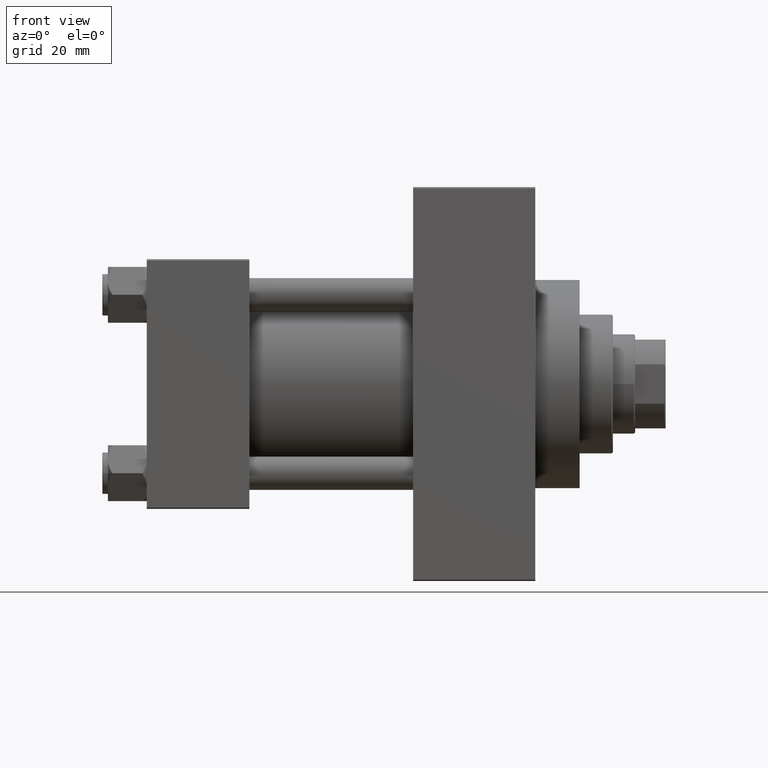
[diagram: clean part render]
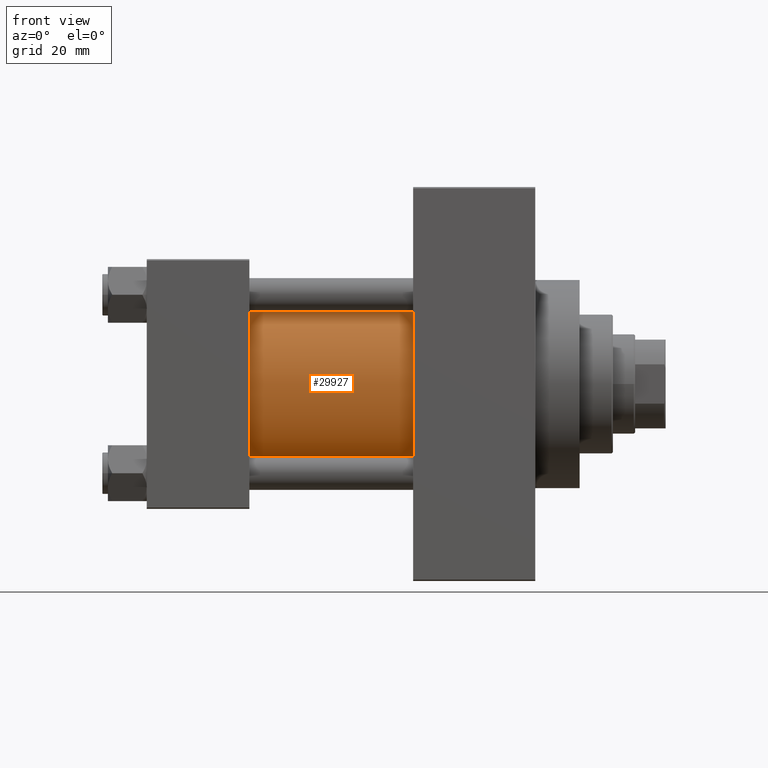
[diagram: same view with one face highlighted and labeled with its STEP entity id]
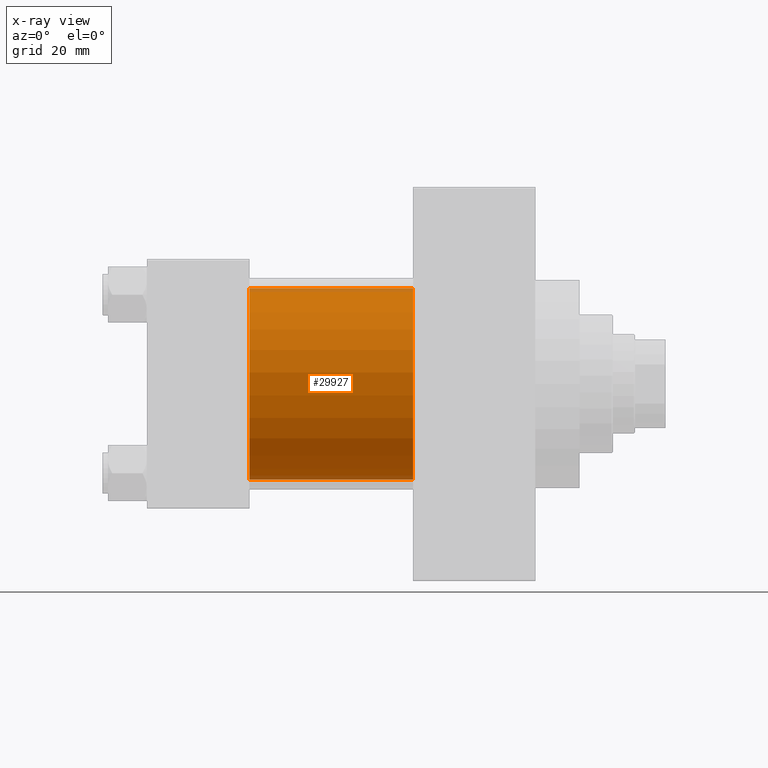
[diagram: x-ray of the same camera — body ghosted, the highlighted face saturated]
A machine part, front view. The second image highlights one B-rep face of the part: STEP entity #29927.
The next image is the same camera in x-ray: the body ghosted, the highlighted face saturated — about 4% of this face is hidden behind the body in this view.
In plain terms, the highlighted cylindrical surface (partial cylindrical patch) has radius 34.5 mm, axis along (-1, -0, -0).
Its self-contained STEP definition (entity closure, byte-faithful):
#289 = CARTESIAN_POINT ( 'NONE',  ( 96.00000000000000000, -2.602085213965210642E-15, 34.50000000000000000 ) ) ;
#1460 = EDGE_LOOP ( 'NONE', ( #27628, #27636, #1514, #16909 ) ) ;
#1514 = ORIENTED_EDGE ( 'NONE', *, *, #9973, .T. ) ;
#2414 = CARTESIAN_POINT ( 'NONE',  ( 37.00000000000000000, -2.602085213965210642E-15, 0.000000000000000000 ) ) ;
#2659 = VERTEX_POINT ( 'NONE', #11715 ) ;
#6772 = CARTESIAN_POINT ( 'NONE',  ( 96.00000000000000000, -2.602085213965210642E-15, 0.000000000000000000 ) ) ;
#8475 = CYLINDRICAL_SURFACE ( 'NONE', #31662, 34.50000000000000000 ) ;
#9973 = EDGE_CURVE ( 'NONE', #2659, #44502, #18045, .T. ) ;
#11715 = CARTESIAN_POINT ( 'NONE',  ( 96.00000000000000000, -2.602085213965210642E-15, 34.50000000000000000 ) ) ;
#11838 = DIRECTION ( 'NONE',  ( -1.000000000000000000, -0.000000000000000000, -0.000000000000000000 ) ) ;
#12822 = EDGE_CURVE ( 'NONE', #28597, #37142, #43236, .T. ) ;
#12844 = EDGE_CURVE ( 'NONE', #2659, #28597, #44302, .T. ) ;
#14919 = DIRECTION ( 'NONE',  ( -1.000000000000000000, -0.000000000000000000, -0.000000000000000000 ) ) ;
#15908 = CARTESIAN_POINT ( 'NONE',  ( 96.00000000000000000, -2.602085213965210642E-15, 0.000000000000000000 ) ) ;
#16758 = EDGE_CURVE ( 'NONE', #44502, #37142, #39071, .T. ) ;
#16909 = ORIENTED_EDGE ( 'NONE', *, *, #16758, .T. ) ;
#17047 = DIRECTION ( 'NONE',  ( 0.000000000000000000, 0.000000000000000000, 1.000000000000000000 ) ) ;
#17125 = DIRECTION ( 'NONE',  ( -1.000000000000000000, -0.000000000000000000, -0.000000000000000000 ) ) ;
#18045 = LINE ( 'NONE', #289, #33587 ) ;
#20728 = DIRECTION ( 'NONE',  ( 0.000000000000000000, 0.000000000000000000, -1.000000000000000000 ) ) ;
#20957 = CARTESIAN_POINT ( 'NONE',  ( 96.00000000000000000, 1.622946243093158675E-15, -34.50000000000000000 ) ) ;
#22234 = AXIS2_PLACEMENT_3D ( 'NONE', #2414, #34793, #17047 ) ;
#23352 = FACE_OUTER_BOUND ( 'NONE', #1460, .T. ) ;
#25925 = AXIS2_PLACEMENT_3D ( 'NONE', #6772, #42766, #20728 ) ;
#27628 = ORIENTED_EDGE ( 'NONE', *, *, #12822, .F. ) ;
#27636 = ORIENTED_EDGE ( 'NONE', *, *, #12844, .F. ) ;
#28597 = VERTEX_POINT ( 'NONE', #29388 ) ;
#29388 = CARTESIAN_POINT ( 'NONE',  ( 96.00000000000000000, 1.622946243093158675E-15, -34.50000000000000000 ) ) ;
#29927 = ADVANCED_FACE ( 'NONE', ( #23352 ), #8475, .T. ) ;
#30041 = DIRECTION ( 'NONE',  ( 0.000000000000000000, 0.000000000000000000, 1.000000000000000000 ) ) ;
#31662 = AXIS2_PLACEMENT_3D ( 'NONE', #15908, #11838, #30041 ) ;
#33587 = VECTOR ( 'NONE', #14919, 1000.000000000000000 ) ;
#34793 = DIRECTION ( 'NONE',  ( 1.000000000000000000, -0.000000000000000000, 0.000000000000000000 ) ) ;
#36359 = CARTESIAN_POINT ( 'NONE',  ( 37.00000000000000000, 1.622946243093158675E-15, -34.50000000000000000 ) ) ;
#37142 = VERTEX_POINT ( 'NONE', #36359 ) ;
#39071 = CIRCLE ( 'NONE', #22234, 34.50000000000000000 ) ;
#42766 = DIRECTION ( 'NONE',  ( 1.000000000000000000, 0.000000000000000000, 0.000000000000000000 ) ) ;
#43236 = LINE ( 'NONE', #20957, #47463 ) ;
#44302 = CIRCLE ( 'NONE', #25925, 34.50000000000000000 ) ;
#44502 = VERTEX_POINT ( 'NONE', #46626 ) ;
#46626 = CARTESIAN_POINT ( 'NONE',  ( 37.00000000000000000, -2.602085213965210642E-15, 34.50000000000000000 ) ) ;
#47463 = VECTOR ( 'NONE', #17125, 1000.000000000000000 ) ;